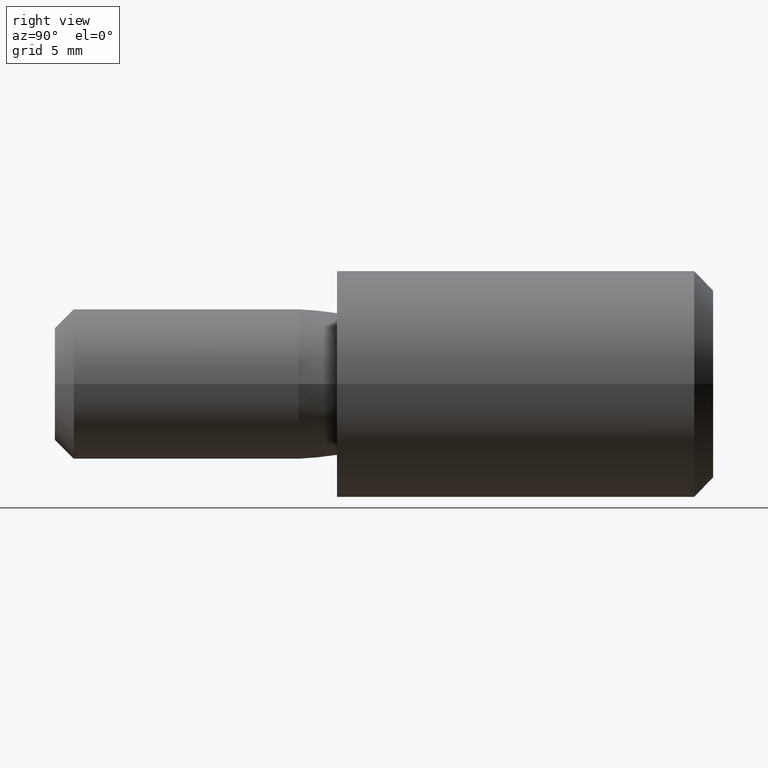
[diagram: clean part render]
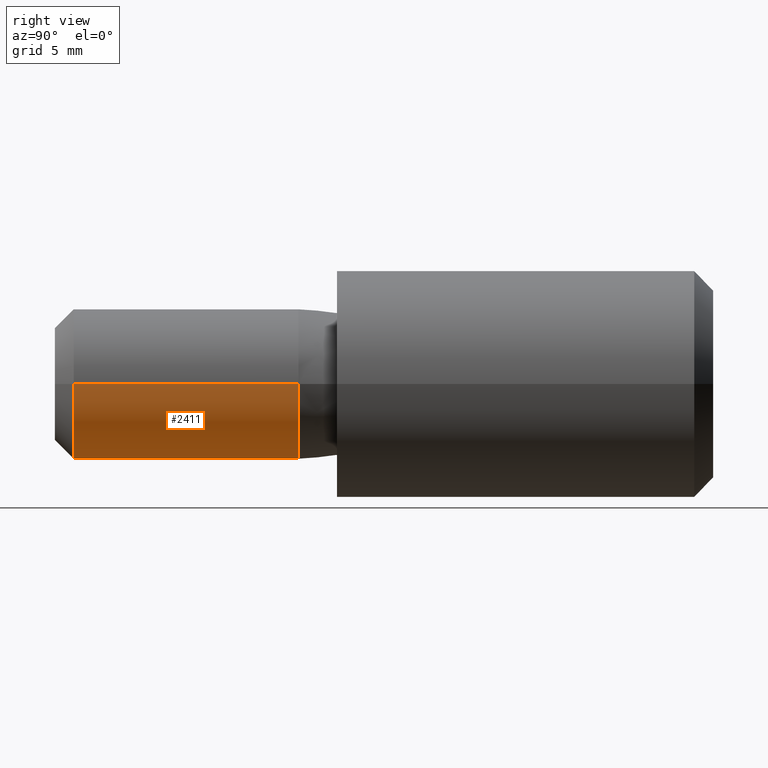
[diagram: same view with one face highlighted and labeled with its STEP entity id]
A machine part, right view. The second image highlights one B-rep face of the part: STEP entity #2411.
In plain terms, the highlighted cylindrical surface (partial cylindrical patch) has radius 4 mm, axis along (-0, -1, -0).
Its self-contained STEP definition (entity closure, byte-faithful):
#212 = VECTOR ( 'NONE', #9956, 1000.000000000000000 ) ;
#951 = DIRECTION ( 'NONE',  ( -4.956352788505162800E-017, -1.000000000000000000, -0.0000000000000000000 ) ) ;
#1050 = ORIENTED_EDGE ( 'NONE', *, *, #12691, .T. ) ;
#1130 = CARTESIAN_POINT ( 'NONE',  ( 0.0000000000000000000, -15.00000000000000000, 0.0000000000000000000 ) ) ;
#1335 = CARTESIAN_POINT ( 'NONE',  ( 3.999999999999998200, -2.045590543175408900, 0.0000000000000000000 ) ) ;
#1838 = VERTEX_POINT ( 'NONE', #7070 ) ;
#2067 = CIRCLE ( 'NONE', #2475, 4.000000000000001800 ) ;
#2411 = ADVANCED_FACE ( 'NONE', ( #6186 ), #11373, .T. ) ;
#2475 = AXIS2_PLACEMENT_3D ( 'NONE', #3629, #4560, #12708 ) ;
#2817 = CARTESIAN_POINT ( 'NONE',  ( 4.000000000000000000, -15.00000000000000000, 0.0000000000000000000 ) ) ;
#3239 = EDGE_CURVE ( 'NONE', #9325, #4808, #2067, .T. ) ;
#3629 = CARTESIAN_POINT ( 'NONE',  ( 4.956352788505168300E-017, -13.99999999999999800, 0.0000000000000000000 ) ) ;
#3717 = LINE ( 'NONE', #2817, #212 ) ;
#4191 = AXIS2_PLACEMENT_3D ( 'NONE', #7041, #7208, #8300 ) ;
#4321 = ORIENTED_EDGE ( 'NONE', *, *, #3239, .F. ) ;
#4560 = DIRECTION ( 'NONE',  ( -4.956352788505162800E-017, -1.000000000000000000, -0.0000000000000000000 ) ) ;
#4776 = ORIENTED_EDGE ( 'NONE', *, *, #8996, .T. ) ;
#4808 = VERTEX_POINT ( 'NONE', #12805 ) ;
#6186 = FACE_OUTER_BOUND ( 'NONE', #11691, .T. ) ;
#7041 = CARTESIAN_POINT ( 'NONE',  ( 6.420662343477020500E-016, -2.045590543175408900, 0.0000000000000000000 ) ) ;
#7070 = CARTESIAN_POINT ( 'NONE',  ( -3.999999999999996400, -2.045590543175408900, 4.898587196589410900E-016 ) ) ;
#7134 = VERTEX_POINT ( 'NONE', #1335 ) ;
#7208 = DIRECTION ( 'NONE',  ( -4.956352788505162800E-017, -1.000000000000000000, -0.0000000000000000000 ) ) ;
#8062 = DIRECTION ( 'NONE',  ( -4.956352788505162800E-017, -1.000000000000000000, -0.0000000000000000000 ) ) ;
#8213 = EDGE_CURVE ( 'NONE', #1838, #9325, #12539, .T. ) ;
#8300 = DIRECTION ( 'NONE',  ( 1.000000000000000000, 0.0000000000000000000, 0.0000000000000000000 ) ) ;
#8767 = CARTESIAN_POINT ( 'NONE',  ( -4.000000000000001800, -13.99999999999999800, 0.0000000000000000000 ) ) ;
#8996 = EDGE_CURVE ( 'NONE', #7134, #4808, #3717, .T. ) ;
#9041 = DIRECTION ( 'NONE',  ( 1.000000000000000000, 0.0000000000000000000, 0.0000000000000000000 ) ) ;
#9060 = ORIENTED_EDGE ( 'NONE', *, *, #8213, .F. ) ;
#9192 = CIRCLE ( 'NONE', #4191, 3.999999999999997300 ) ;
#9325 = VERTEX_POINT ( 'NONE', #8767 ) ;
#9956 = DIRECTION ( 'NONE',  ( -4.956352788505162800E-017, -1.000000000000000000, -0.0000000000000000000 ) ) ;
#11134 = VECTOR ( 'NONE', #8062, 1000.000000000000000 ) ;
#11373 = CYLINDRICAL_SURFACE ( 'NONE', #12601, 4.000000000000000000 ) ;
#11691 = EDGE_LOOP ( 'NONE', ( #9060, #1050, #4776, #4321 ) ) ;
#12539 = LINE ( 'NONE', #13066, #11134 ) ;
#12601 = AXIS2_PLACEMENT_3D ( 'NONE', #1130, #951, #9041 ) ;
#12691 = EDGE_CURVE ( 'NONE', #1838, #7134, #9192, .T. ) ;
#12708 = DIRECTION ( 'NONE',  ( 1.000000000000000000, 0.0000000000000000000, 0.0000000000000000000 ) ) ;
#12805 = CARTESIAN_POINT ( 'NONE',  ( 4.000000000000001800, -13.99999999999999800, 4.898587196589414800E-016 ) ) ;
#13066 = CARTESIAN_POINT ( 'NONE',  ( -4.000000000000000000, -15.00000000000000000, 4.898587196589412800E-016 ) ) ;